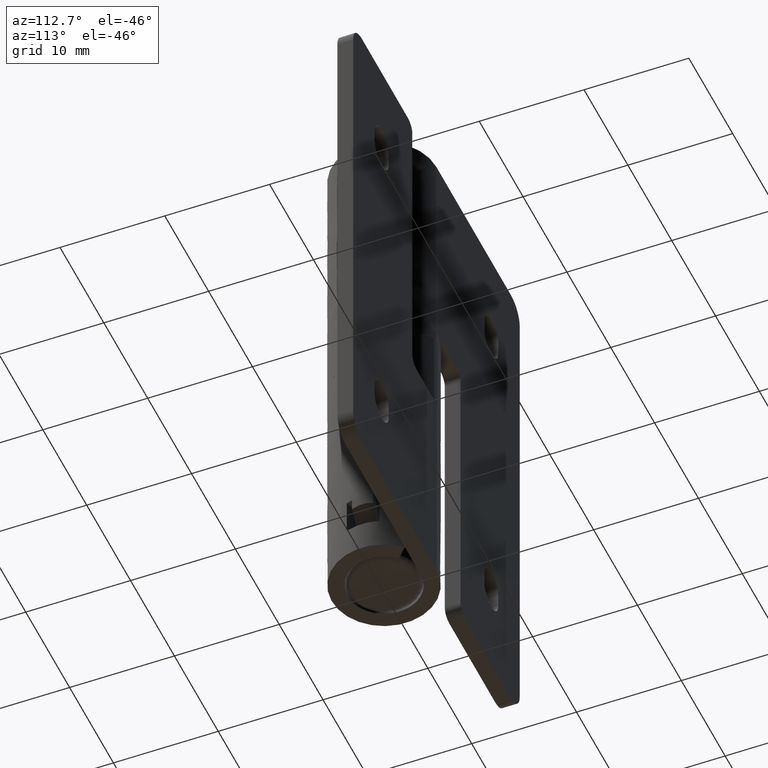
[diagram: clean part render]
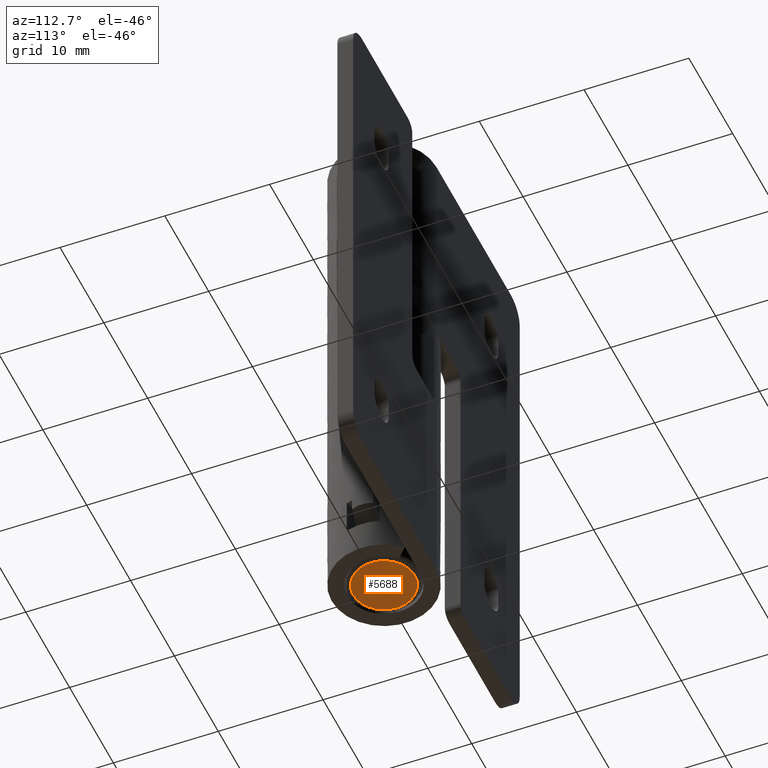
[diagram: same view with one face highlighted and labeled with its STEP entity id]
A machine part, auxiliary view. The second image highlights one B-rep face of the part: STEP entity #5688.
In plain terms, the highlighted face is a freeform B-spline surface patch.
Its self-contained STEP definition (entity closure, byte-faithful):
#5634=CARTESIAN_POINT('',(-3.298657996365666,3.257393292112757,-0.000000015166345));
#5635=CARTESIAN_POINT('',(3.298658298668435,3.257393292112757,0.000000015166353));
#5636=CARTESIAN_POINT('',(-3.298657996365666,-3.257393448023737,-0.000000015166345));
#5637=CARTESIAN_POINT('',(3.298658298668435,-3.257393448023737,0.000000015166353));
#5638=B_SPLINE_SURFACE_WITH_KNOTS('',1,1,((#5634,#5636),(#5635,#5637)),.UNSPECIFIED.,.F.,.F.,.U.,(2,2),(2,2),(0.0,6.597316295034100),(0.0,6.514786740136493),.UNSPECIFIED.);
#5639=CARTESIAN_POINT('',(-2.999052641992160,-0.075390288558348,-0.000000013788823));
#5640=VERTEX_POINT('',#5639);
#5641=CARTESIAN_POINT('',(2.999052783413205,0.075390291497705,0.000000013788908));
#5642=VERTEX_POINT('',#5641);
#5643=CARTESIAN_POINT('',(-2.999052641992160,-0.075390288558348,-0.000000013788823));
#5644=CARTESIAN_POINT('',(-2.991298555440620,-0.391823328384467,-0.000000013753172));
#5645=CARTESIAN_POINT('',(-2.910021426103830,-0.828148842399089,-0.000000013379481));
#5646=CARTESIAN_POINT('',(-2.674357278335058,-1.377402711531910,-0.000000012295958));
#5647=CARTESIAN_POINT('',(-2.407449382042904,-1.815478892010548,-0.000000011068785));
#5648=CARTESIAN_POINT('',(-2.049818890817343,-2.202727704403315,-9.424493E-009));
#5649=CARTESIAN_POINT('',(-1.618816984091178,-2.522930027663249,-7.442858E-009));
#5650=CARTESIAN_POINT('',(-1.261913151613320,-2.710630713358547,-5.801907E-009));
#5651=CARTESIAN_POINT('',(-0.849470138464148,-2.860406993109569,-3.905601E-009));
#5652=CARTESIAN_POINT('',(-0.323975993741833,-2.974112495851402,-1.489516E-009));
#5653=CARTESIAN_POINT('',(0.327010242833106,-2.969289902670356,1.503550E-009));
#5654=CARTESIAN_POINT('',(0.956457161032934,-2.812708365054415,4.397583E-009));
#5655=CARTESIAN_POINT('',(1.445023087609735,-2.588505906209949,6.643883E-009));
#5656=CARTESIAN_POINT('',(1.860476405201891,-2.309131616398563,8.554029E-009));
#5657=CARTESIAN_POINT('',(2.306112086829896,-1.891336573859816,0.000000010602946));
#5658=CARTESIAN_POINT('',(2.685811321392372,-1.332143227224201,0.000000012348705));
#5659=CARTESIAN_POINT('',(2.942459072214212,-0.630625216708076,0.000000013528704));
#5660=CARTESIAN_POINT('',(2.999106706553730,-0.168091581424084,0.000000013789156));
#5661=CARTESIAN_POINT('',(2.999052783413205,0.075390291497705,0.000000013788908));
#5662=B_SPLINE_CURVE_WITH_KNOTS('',3,(#5643,#5644,#5645,#5646,#5647,#5648,#5649,#5650,#5651,#5652,#5653,#5654,#5655,#5656,#5657,#5658,#5659,#5660,#5661),.UNSPECIFIED.,.F.,.U.,(4,1,1,1,1,1,1,1,1,1,1,1,1,1,1,1,4),(0.000000375430373,0.949557684699124,1.314787965401476,1.789586854705706,2.483522606402243,2.885277272529662,3.396598510775761,3.688779726825261,4.200077984212233,5.003552332413729,5.624415640219368,6.135750337468965,6.610541467832928,7.121858262307236,7.961888485144083,8.619300284155887,9.349716775946172),.UNSPECIFIED.);
#5663=EDGE_CURVE('',#5640,#5642,#5662,.T.);
#5664=ORIENTED_EDGE('',*,*,#5663,.F.);
#5665=CARTESIAN_POINT('',(2.999052783413205,0.075390291497705,0.000000013788908));
#5666=CARTESIAN_POINT('',(2.992708643824125,0.330964387958568,0.000000013759739));
#5667=CARTESIAN_POINT('',(2.930825791625923,0.731271069170028,0.000000013475218));
#5668=CARTESIAN_POINT('',(2.722418816119580,1.291959147323790,0.000000012517017));
#5669=CARTESIAN_POINT('',(2.487920182413181,1.693360971712652,0.000000011438853));
#5670=CARTESIAN_POINT('',(2.130835966487042,2.126173339042452,9.797072E-009));
#5671=CARTESIAN_POINT('',(1.659669192138134,2.518952707079114,7.630770E-009));
#5672=CARTESIAN_POINT('',(1.040160008828613,2.815850226517703,4.782428E-009));
#5673=CARTESIAN_POINT('',(0.455877828864525,2.949620373767805,2.096050E-009));
#5674=CARTESIAN_POINT('',(-0.166243280619996,2.979373241499151,-7.643013E-010));
#5675=CARTESIAN_POINT('',(-0.844697682868777,2.866275865289744,-3.883658E-009));
#5676=CARTESIAN_POINT('',(-1.515638442659802,2.563083511996983,-6.968470E-009));
#5677=CARTESIAN_POINT('',(-2.050709069882776,2.154789917279784,-9.428586E-009));
#5678=CARTESIAN_POINT('',(-2.468350180985247,1.674702596736862,-0.000000011348791));
#5679=CARTESIAN_POINT('',(-2.741717454683150,1.182221002348792,-0.000000012605663));
#5680=CARTESIAN_POINT('',(-2.944916340889871,0.594089939800782,-0.000000013539919));
#5681=CARTESIAN_POINT('',(-2.999136393133842,0.192457441955897,-0.000000013789208));
#5682=CARTESIAN_POINT('',(-2.999052641992160,-0.075390288558348,-0.000000013788823));
#5683=B_SPLINE_CURVE_WITH_KNOTS('',3,(#5665,#5666,#5667,#5668,#5669,#5670,#5671,#5672,#5673,#5674,#5675,#5676,#5677,#5678,#5679,#5680,#5681,#5682),.UNSPECIFIED.,.F.,.U.,(4,1,1,1,1,1,1,1,1,1,1,1,1,1,1,4),(0.000000375429941,0.766958217996297,1.205220822871331,1.789586854712509,2.154817015804079,2.885277272540925,3.615721640549399,4.200077984228909,4.674833865156610,5.478320409971662,6.245314360866002,6.866197287097716,7.487089275150062,8.144488768391813,8.546233486876664,9.349716775983495),.UNSPECIFIED.);
#5684=EDGE_CURVE('',#5642,#5640,#5683,.T.);
#5685=ORIENTED_EDGE('',*,*,#5684,.F.);
#5686=EDGE_LOOP('',(#5664,#5685));
#5687=FACE_OUTER_BOUND('',#5686,.T.);
#5688=ADVANCED_FACE('',(#5687),#5638,.T.);